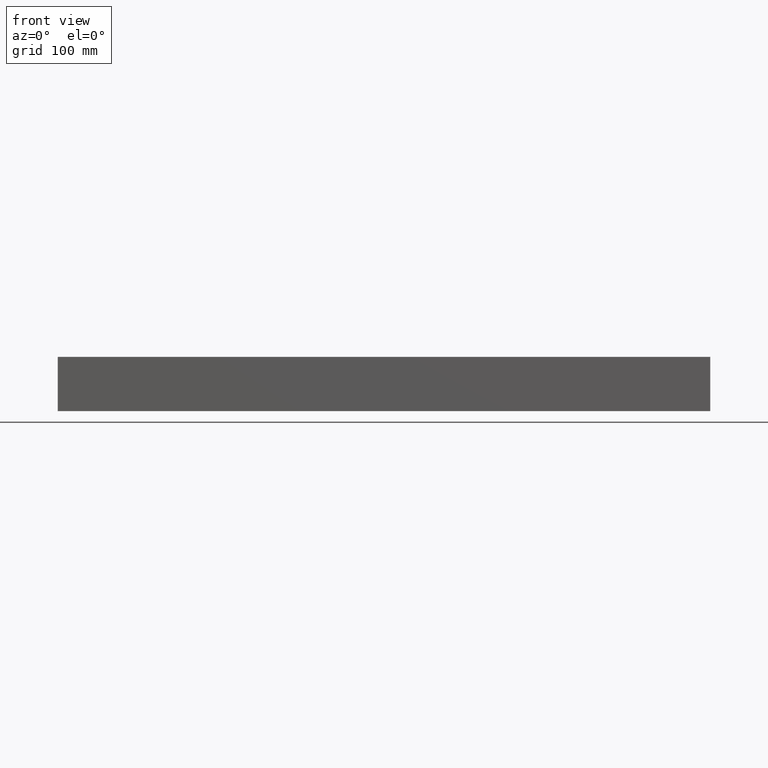
[diagram: clean part render]
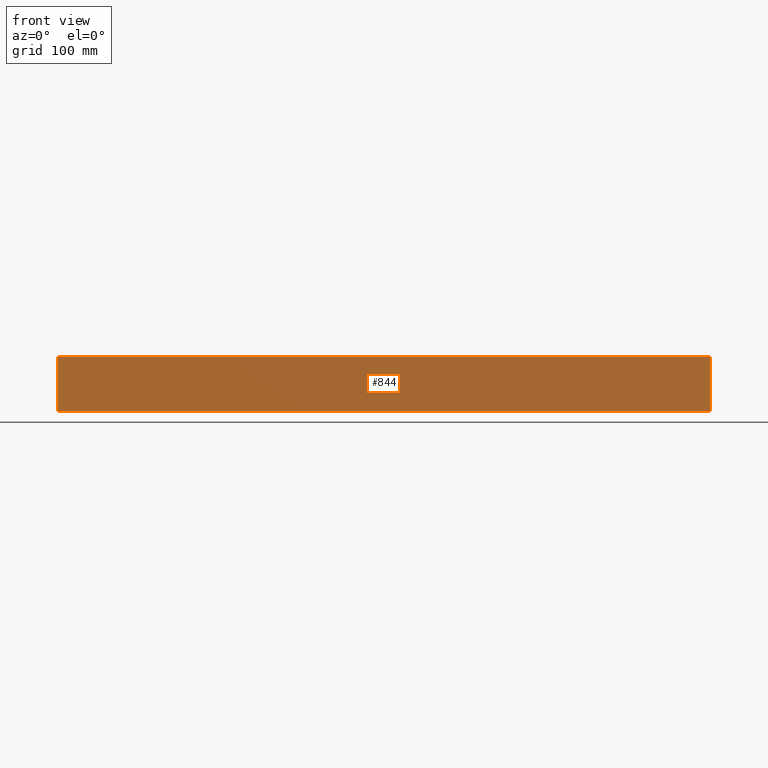
[diagram: same view with one face highlighted and labeled with its STEP entity id]
A machine part, front view. The second image highlights one B-rep face of the part: STEP entity #844.
In plain terms, the highlighted planar face has unit normal (0, 1, 0).
Its self-contained STEP definition (entity closure, byte-faithful):
#844 = ADVANCED_FACE ( 'NONE', ( #12600 ), #9581, .F. ) ;
#2524 = VERTEX_POINT ( 'NONE', #15314 ) ;
#3027 = CARTESIAN_POINT ( 'NONE',  ( -299.9999999999999400, -150.0000000000000000, 0.0000000000000000000 ) ) ;
#3594 = DIRECTION ( 'NONE',  ( -0.0000000000000000000, -0.0000000000000000000, -1.000000000000000000 ) ) ;
#3695 = EDGE_LOOP ( 'NONE', ( #9907, #10332, #10516, #10933 ) ) ;
#4009 = CARTESIAN_POINT ( 'NONE',  ( -299.9999999999999400, -150.0000000000000000, 50.00000000000000000 ) ) ;
#4182 = VERTEX_POINT ( 'NONE', #3027 ) ;
#4792 = VECTOR ( 'NONE', #13584, 1000.000000000000000 ) ;
#4907 = DIRECTION ( 'NONE',  ( -0.0000000000000000000, -0.0000000000000000000, -1.000000000000000000 ) ) ;
#5171 = CARTESIAN_POINT ( 'NONE',  ( 299.9999999999999400, -150.0000000000000000, 0.0000000000000000000 ) ) ;
#5198 = DIRECTION ( 'NONE',  ( 0.0000000000000000000, 1.000000000000000000, 0.0000000000000000000 ) ) ;
#5210 = LINE ( 'NONE', #16042, #4792 ) ;
#5429 = VERTEX_POINT ( 'NONE', #4009 ) ;
#5958 = VERTEX_POINT ( 'NONE', #5171 ) ;
#6323 = DIRECTION ( 'NONE',  ( 0.0000000000000000000, -0.0000000000000000000, 1.000000000000000000 ) ) ;
#6979 = EDGE_CURVE ( 'NONE', #2524, #5958, #15962, .T. ) ;
#8742 = CARTESIAN_POINT ( 'NONE',  ( -299.9999999999999400, -150.0000000000000000, 50.00000000000000000 ) ) ;
#8908 = EDGE_CURVE ( 'NONE', #5429, #4182, #16396, .T. ) ;
#9355 = VECTOR ( 'NONE', #3594, 1000.000000000000000 ) ;
#9375 = DIRECTION ( 'NONE',  ( 1.000000000000000000, 0.0000000000000000000, 0.0000000000000000000 ) ) ;
#9581 = PLANE ( 'NONE',  #10087 ) ;
#9831 = EDGE_CURVE ( 'NONE', #4182, #5958, #14665, .T. ) ;
#9907 = ORIENTED_EDGE ( 'NONE', *, *, #9831, .T. ) ;
#10047 = EDGE_CURVE ( 'NONE', #5429, #2524, #5210, .T. ) ;
#10087 = AXIS2_PLACEMENT_3D ( 'NONE', #12971, #5198, #6323 ) ;
#10332 = ORIENTED_EDGE ( 'NONE', *, *, #6979, .F. ) ;
#10516 = ORIENTED_EDGE ( 'NONE', *, *, #10047, .F. ) ;
#10529 = CARTESIAN_POINT ( 'NONE',  ( -299.9999999999999400, -150.0000000000000000, 0.0000000000000000000 ) ) ;
#10587 = VECTOR ( 'NONE', #4907, 1000.000000000000000 ) ;
#10933 = ORIENTED_EDGE ( 'NONE', *, *, #8908, .T. ) ;
#11196 = CARTESIAN_POINT ( 'NONE',  ( 299.9999999999999400, -150.0000000000000000, 50.00000000000000000 ) ) ;
#11336 = VECTOR ( 'NONE', #9375, 1000.000000000000000 ) ;
#12600 = FACE_OUTER_BOUND ( 'NONE', #3695, .T. ) ;
#12971 = CARTESIAN_POINT ( 'NONE',  ( -299.9999999999999400, -150.0000000000000000, 50.00000000000000000 ) ) ;
#13584 = DIRECTION ( 'NONE',  ( 1.000000000000000000, 0.0000000000000000000, 0.0000000000000000000 ) ) ;
#14665 = LINE ( 'NONE', #10529, #11336 ) ;
#15314 = CARTESIAN_POINT ( 'NONE',  ( 299.9999999999999400, -150.0000000000000000, 50.00000000000000000 ) ) ;
#15962 = LINE ( 'NONE', #11196, #9355 ) ;
#16042 = CARTESIAN_POINT ( 'NONE',  ( -299.9999999999999400, -150.0000000000000000, 50.00000000000000000 ) ) ;
#16396 = LINE ( 'NONE', #8742, #10587 ) ;